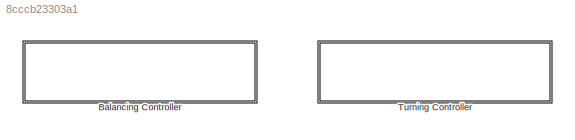
MODEL slx_8cccb23303a1
KIND library
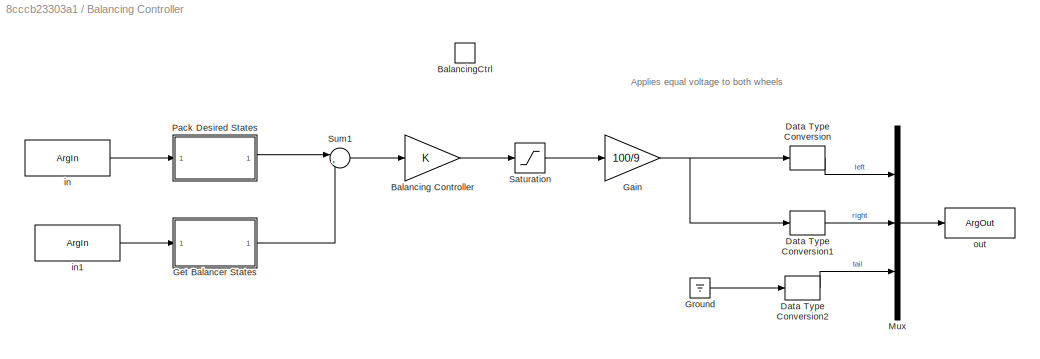
BLOCK [SubSystem] Balancing Controller
  Ports = [0, 0, 0, 1]
  RequestExecContextInheritance = off
  TreatAsAtomicUnit = on
BLOCK [Gain] Balancing Controller/Balancing Controller
  Gain = K
  Multiplication = Matrix(K*u)
  OutDataTypeStr = Inherit: Inherit via internal rule
  ParamDataTypeStr = Inherit: Inherit via internal rule
  SaturateOnIntegerOverflow = off
BLOCK [TriggerPort] Balancing Controller/BalancingCtrl
  FunctionName = BalancingCtrl
  IsSimulinkFunction = on
  Ports = []
  StatesWhenEnabling = held
  TriggerType = function-call
BLOCK [DataTypeConversion] Balancing Controller/Data Type Conversion
  OutDataTypeStr = single
  RndMeth = Floor
  SaturateOnIntegerOverflow = off
BLOCK [DataTypeConversion] Balancing Controller/Data Type Conversion1
  OutDataTypeStr = single
  RndMeth = Floor
  SaturateOnIntegerOverflow = off
BLOCK [DataTypeConversion] Balancing Controller/Data Type Conversion2
  OutDataTypeStr = single
  RndMeth = Floor
  SaturateOnIntegerOverflow = off
BLOCK [Gain] Balancing Controller/Gain
  Gain = 100/9
  OutDataTypeStr = Inherit: Inherit via internal rule
  ParamDataTypeStr = Inherit: Inherit via internal rule
  SaturateOnIntegerOverflow = off
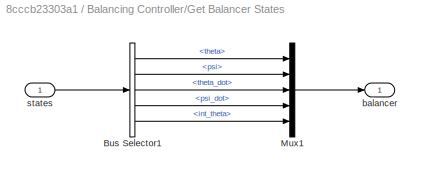
BLOCK [SubSystem] Balancing Controller/Get Balancer States
  Ports = [1, 1]
  RequestExecContextInheritance = off
BLOCK [BusSelector] Balancing Controller/Get Balancer States/Bus Selector1
  OutputSignals = balancerStates.theta,balancerStates.psi,balancerStates.theta_dot,balancerStates.psi_dot,balancerStates.int_theta
  Ports = [1, 5]
BLOCK [Mux] Balancing Controller/Get Balancer States/Mux1
  DisplayOption = bar
  Inputs = 5
  Ports = [5, 1]
BLOCK [Outport] Balancing Controller/Get Balancer States/balancer
  IconDisplay = Port number
BLOCK [Inport] Balancing Controller/Get Balancer States/states
  IconDisplay = Port number
BLOCK [Ground] Balancing Controller/Ground
BLOCK [Mux] Balancing Controller/Mux
  DisplayOption = bar
  Inputs = 3
  Ports = [3, 1]
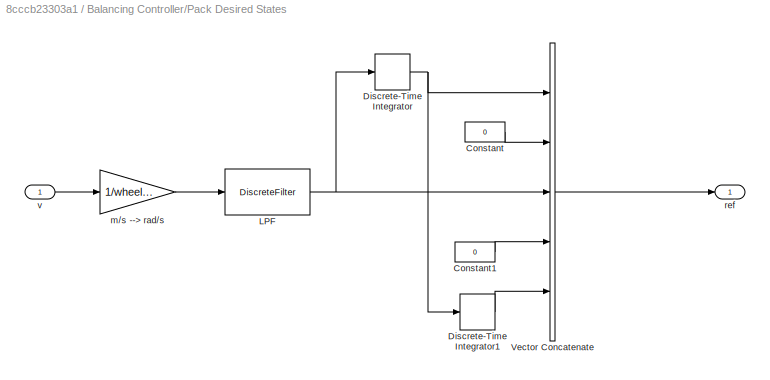
BLOCK [SubSystem] Balancing Controller/Pack Desired States
  Ports = [1, 1]
  RequestExecContextInheritance = off
BLOCK [Constant] Balancing Controller/Pack Desired States/Constant
  OutDataTypeStr = single
  Value = 0
BLOCK [Constant] Balancing Controller/Pack Desired States/Constant1
  OutDataTypeStr = single
  Value = 0
BLOCK [DiscreteIntegrator] Balancing Controller/Pack Desired States/Discrete-Time Integrator
  Ports = [1, 1]
  SampleTime = -1
BLOCK [DiscreteIntegrator] Balancing Controller/Pack Desired States/Discrete-Time Integrator1
  Ports = [1, 1]
  SampleTime = -1
BLOCK [DiscreteFilter] Balancing Controller/Pack Desired States/LPF
  Denominator = [1 -0.85]
  InputPortMap = u0
  Numerator = [0.15]
  Ports = [1, 1]
BLOCK [Concatenate] Balancing Controller/Pack Desired States/Vector Concatenate
  NumInputs = 5
  Ports = [5, 1]
BLOCK [Gain] Balancing Controller/Pack Desired States/m//s --> rad//s
  Gain = 1/wheel.r
  OutDataTypeStr = Inherit: Inherit via internal rule
  ParamDataTypeStr = Inherit: Inherit via internal rule
  SaturateOnIntegerOverflow = off
BLOCK [Outport] Balancing Controller/Pack Desired States/ref
  IconDisplay = Port number
BLOCK [Inport] Balancing Controller/Pack Desired States/v
  IconDisplay = Port number
BLOCK [Saturate] Balancing Controller/Saturation
  InputPortMap = u0
  LowerLimit = -9
  OutDataTypeStr = single
  Ports = [1, 1]
  UpperLimit = 9
BLOCK [Sum] Balancing Controller/Sum1
  IconShape = round
  InputSameDT = off
  Inputs = |+-
  OutDataTypeStr = Inherit: Inherit via internal rule
  Ports = [2, 1]
  SaturateOnIntegerOverflow = off
BLOCK [ArgIn] Balancing Controller/in
  ArgumentName = v_ref
  OutDataTypeStr = single
BLOCK [ArgIn] Balancing Controller/in1
  ArgumentName = states
  OutDataTypeStr = Bus: States_Bus
  Port = 2
BLOCK [ArgOut] Balancing Controller/out
  ArgumentName = out
  OutDataTypeStr = single
  PortDimensions = 3
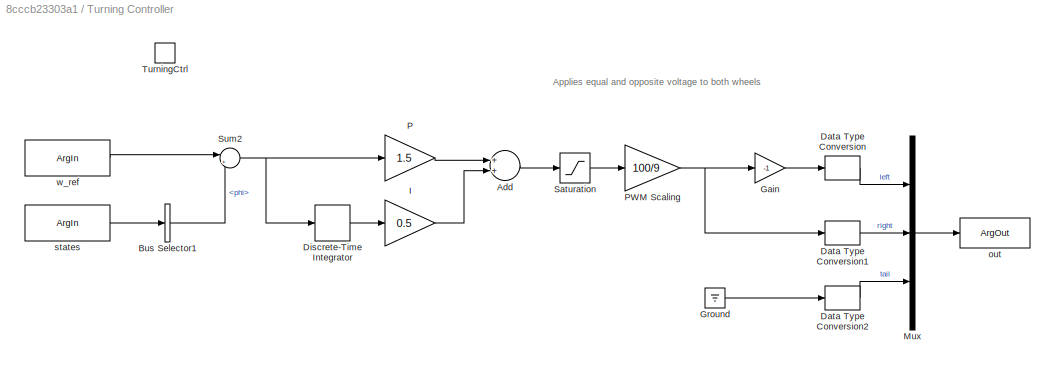
BLOCK [SubSystem] Turning Controller
  Ports = [0, 0, 0, 1]
  RequestExecContextInheritance = off
  TreatAsAtomicUnit = on
BLOCK [Sum] Turning Controller/Add
  InputSameDT = off
  OutDataTypeStr = Inherit: Inherit via internal rule
  Ports = [2, 1]
  SaturateOnIntegerOverflow = off
BLOCK [BusSelector] Turning Controller/Bus Selector1
  OutputSignals = phi
  Ports = [1, 1]
BLOCK [DataTypeConversion] Turning Controller/Data Type Conversion
  OutDataTypeStr = single
  RndMeth = Floor
  SaturateOnIntegerOverflow = off
BLOCK [DataTypeConversion] Turning Controller/Data Type Conversion1
  OutDataTypeStr = single
  RndMeth = Floor
  SaturateOnIntegerOverflow = off
BLOCK [DataTypeConversion] Turning Controller/Data Type Conversion2
  OutDataTypeStr = single
  RndMeth = Floor
  SaturateOnIntegerOverflow = off
BLOCK [DiscreteIntegrator] Turning Controller/Discrete-Time Integrator
  Ports = [1, 1]
  SampleTime = -1
BLOCK [Gain] Turning Controller/Gain
  Gain = -1
  OutDataTypeStr = Inherit: Inherit via internal rule
  ParamDataTypeStr = Inherit: Inherit via internal rule
  SaturateOnIntegerOverflow = off
BLOCK [Ground] Turning Controller/Ground
BLOCK [Gain] Turning Controller/I
  Gain = 0.5
  OutDataTypeStr = Inherit: Inherit via internal rule
  ParamDataTypeStr = Inherit: Inherit via internal rule
  SaturateOnIntegerOverflow = off
BLOCK [Mux] Turning Controller/Mux
  DisplayOption = bar
  Inputs = 3
  Ports = [3, 1]
BLOCK [Gain] Turning Controller/P
  Gain = 1.5
  OutDataTypeStr = Inherit: Inherit via internal rule
  ParamDataTypeStr = Inherit: Inherit via internal rule
  SaturateOnIntegerOverflow = off
BLOCK [Gain] Turning Controller/PWM Scaling
  Gain = 100/9
  OutDataTypeStr = Inherit: Inherit via internal rule
  ParamDataTypeStr = Inherit: Inherit via internal rule
  SaturateOnIntegerOverflow = off
BLOCK [Saturate] Turning Controller/Saturation
  InputPortMap = u0
  LowerLimit = -2
  Ports = [1, 1]
  UpperLimit = 2
BLOCK [Sum] Turning Controller/Sum2
  IconShape = round
  InputSameDT = off
  Inputs = |+-
  OutDataTypeStr = Inherit: Inherit via internal rule
  Ports = [2, 1]
  SaturateOnIntegerOverflow = off
BLOCK [TriggerPort] Turning Controller/TurningCtrl
  FunctionName = TurningCtrl
  IsSimulinkFunction = on
  Ports = []
  StatesWhenEnabling = held
  TriggerType = function-call
BLOCK [ArgOut] Turning Controller/out
  ArgumentName = out
  OutDataTypeStr = single
  PortDimensions = 3
BLOCK [ArgIn] Turning Controller/states
  ArgumentName = states
  OutDataTypeStr = Bus: States_Bus
  Port = 2
BLOCK [ArgIn] Turning Controller/w_ref
  ArgumentName = w_ref
  OutDataTypeStr = single
ANNOTATION Balancing Controller: Applies equal voltage to both wheels
ANNOTATION Turning Controller: Applies equal and opposite voltage to both wheels
LINE Balancing Controller/Balancing Controller:1 -> Balancing Controller/Saturation:1
LINE Balancing Controller/Data Type Conversion1:1 -> Balancing Controller/Mux:2
LINE Balancing Controller/Data Type Conversion2:1 -> Balancing Controller/Mux:3
LINE Balancing Controller/Data Type Conversion:1 -> Balancing Controller/Mux:1
NET Balancing Controller/Gain:1 -> Balancing Controller/Data Type Conversion1:1, Balancing Controller/Data Type Conversion:1
LINE Balancing Controller/Get Balancer States/Bus Selector1:1 -> Balancing Controller/Get Balancer States/Mux1:1
LINE Balancing Controller/Get Balancer States/Bus Selector1:2 -> Balancing Controller/Get Balancer States/Mux1:2
LINE Balancing Controller/Get Balancer States/Bus Selector1:3 -> Balancing Controller/Get Balancer States/Mux1:3
LINE Balancing Controller/Get Balancer States/Bus Selector1:4 -> Balancing Controller/Get Balancer States/Mux1:4
LINE Balancing Controller/Get Balancer States/Bus Selector1:5 -> Balancing Controller/Get Balancer States/Mux1:5
LINE Balancing Controller/Get Balancer States/Mux1:1 -> Balancing Controller/Get Balancer States/balancer:1
LINE Balancing Controller/Get Balancer States/states:1 -> Balancing Controller/Get Balancer States/Bus Selector1:1
LINE Balancing Controller/Get Balancer States:1 -> Balancing Controller/Sum1:2
LINE Balancing Controller/Ground:1 -> Balancing Controller/Data Type Conversion2:1
LINE Balancing Controller/Mux:1 -> Balancing Controller/out:1
LINE Balancing Controller/Pack Desired States/Constant1:1 -> Balancing Controller/Pack Desired States/Vector Concatenate:4
LINE Balancing Controller/Pack Desired States/Constant:1 -> Balancing Controller/Pack Desired States/Vector Concatenate:2
LINE Balancing Controller/Pack Desired States/Discrete-Time Integrator1:1 -> Balancing Controller/Pack Desired States/Vector Concatenate:5
NET Balancing Controller/Pack Desired States/Discrete-Time Integrator:1 -> Balancing Controller/Pack Desired States/Discrete-Time Integrator1:1, Balancing Controller/Pack Desired States/Vector Concatenate:1
NET Balancing Controller/Pack Desired States/LPF:1 -> Balancing Controller/Pack Desired States/Discrete-Time Integrator:1, Balancing Controller/Pack Desired States/Vector Concatenate:3
LINE Balancing Controller/Pack Desired States/Vector Concatenate:1 -> Balancing Controller/Pack Desired States/ref:1
LINE Balancing Controller/Pack Desired States/m//s --> rad//s:1 -> Balancing Controller/Pack Desired States/LPF:1
LINE Balancing Controller/Pack Desired States/v:1 -> Balancing Controller/Pack Desired States/m//s --> rad//s:1
LINE Balancing Controller/Pack Desired States:1 -> Balancing Controller/Sum1:1
LINE Balancing Controller/Saturation:1 -> Balancing Controller/Gain:1
LINE Balancing Controller/Sum1:1 -> Balancing Controller/Balancing Controller:1
LINE Balancing Controller/in1:1 -> Balancing Controller/Get Balancer States:1
LINE Balancing Controller/in:1 -> Balancing Controller/Pack Desired States:1
LINE Turning Controller/Add:1 -> Turning Controller/Saturation:1
LINE Turning Controller/Bus Selector1:1 -> Turning Controller/Sum2:2
LINE Turning Controller/Data Type Conversion1:1 -> Turning Controller/Mux:2
LINE Turning Controller/Data Type Conversion2:1 -> Turning Controller/Mux:3
LINE Turning Controller/Data Type Conversion:1 -> Turning Controller/Mux:1
LINE Turning Controller/Discrete-Time Integrator:1 -> Turning Controller/I:1
LINE Turning Controller/Gain:1 -> Turning Controller/Data Type Conversion:1
LINE Turning Controller/Ground:1 -> Turning Controller/Data Type Conversion2:1
LINE Turning Controller/I:1 -> Turning Controller/Add:2
LINE Turning Controller/Mux:1 -> Turning Controller/out:1
LINE Turning Controller/P:1 -> Turning Controller/Add:1
NET Turning Controller/PWM Scaling:1 -> Turning Controller/Data Type Conversion1:1, Turning Controller/Gain:1
LINE Turning Controller/Saturation:1 -> Turning Controller/PWM Scaling:1
NET Turning Controller/Sum2:1 -> Turning Controller/Discrete-Time Integrator:1, Turning Controller/P:1
LINE Turning Controller/states:1 -> Turning Controller/Bus Selector1:1
LINE Turning Controller/w_ref:1 -> Turning Controller/Sum2:1
note: NET lines group one-source signal fan-out (src -> all destinations, sorted); 1:1 wires keep LINE
